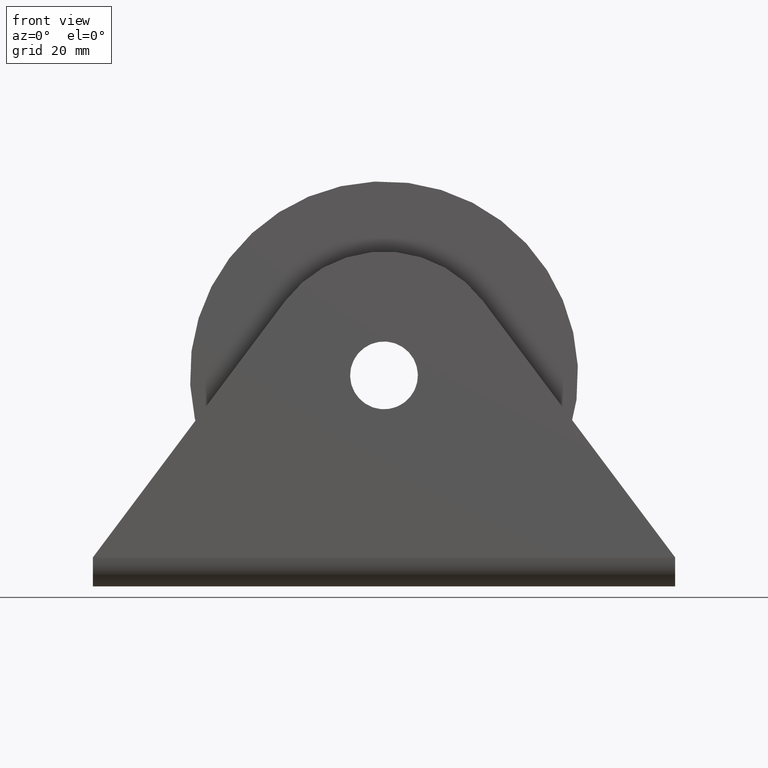
[diagram: clean part render]
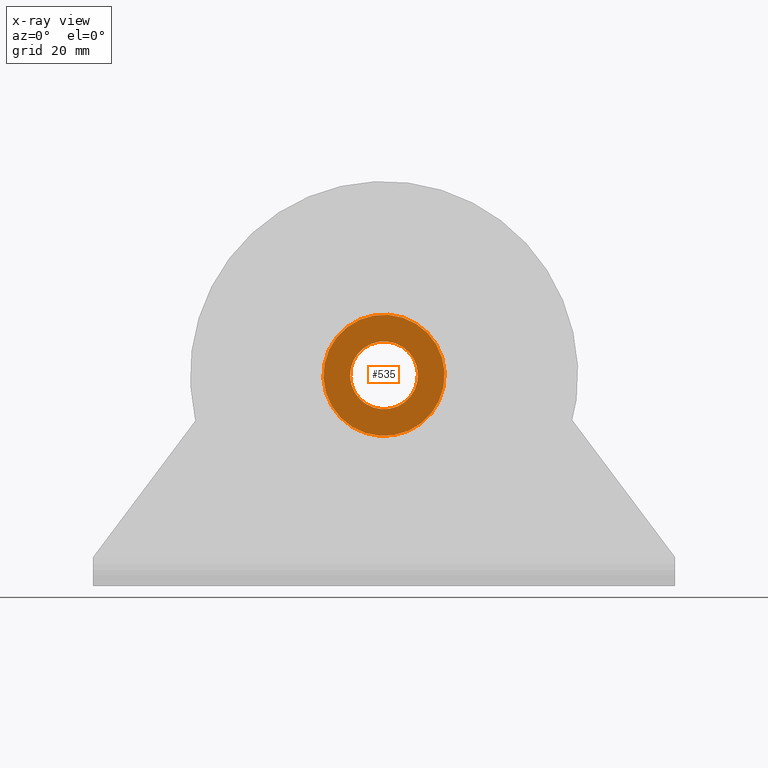
[diagram: x-ray — body ghosted, one internal face saturated and labeled with its STEP entity id]
A machine part, front view, then the same camera in x-ray: the body is ghosted and one INTERNAL B-rep face — a face not visible from any outside direction — is saturated and labeled: STEP entity #535.
In plain terms, the highlighted planar face has unit normal (0, 1, -0).
Its self-contained STEP definition (entity closure, byte-faithful):
#111=PLANE('',#604);
#132=FACE_BOUND('',#225,.T.);
#168=FACE_OUTER_BOUND('',#224,.T.);
#224=EDGE_LOOP('',(#482));
#225=EDGE_LOOP('',(#483));
#256=CIRCLE('',#603,12.5);
#257=CIRCLE('',#605,7.);
#298=VERTEX_POINT('',#920);
#299=VERTEX_POINT('',#923);
#360=EDGE_CURVE('',#298,#298,#256,.T.);
#361=EDGE_CURVE('',#299,#299,#257,.T.);
#482=ORIENTED_EDGE('',*,*,#360,.T.);
#483=ORIENTED_EDGE('',*,*,#361,.F.);
#535=ADVANCED_FACE('',(#168,#132),#111,.T.);
#603=AXIS2_PLACEMENT_3D('',#921,#770,#771);
#604=AXIS2_PLACEMENT_3D('',#922,#772,#773);
#605=AXIS2_PLACEMENT_3D('',#924,#774,#775);
#770=DIRECTION('center_axis',(1.,0.,0.));
#771=DIRECTION('ref_axis',(0.,1.,0.));
#772=DIRECTION('center_axis',(1.,0.,0.));
#773=DIRECTION('ref_axis',(0.,0.,-1.));
#774=DIRECTION('center_axis',(1.,0.,0.));
#775=DIRECTION('ref_axis',(0.,1.,0.));
#920=CARTESIAN_POINT('',(15.5,12.5,0.));
#921=CARTESIAN_POINT('Origin',(15.5,0.,0.));
#922=CARTESIAN_POINT('Origin',(15.5,9.75,0.));
#923=CARTESIAN_POINT('',(15.5,7.,0.));
#924=CARTESIAN_POINT('Origin',(15.5,0.,0.));